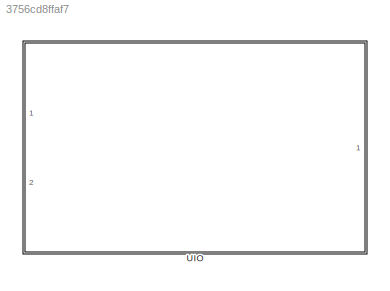
MODEL slx_3756cd8ffaf7
KIND model
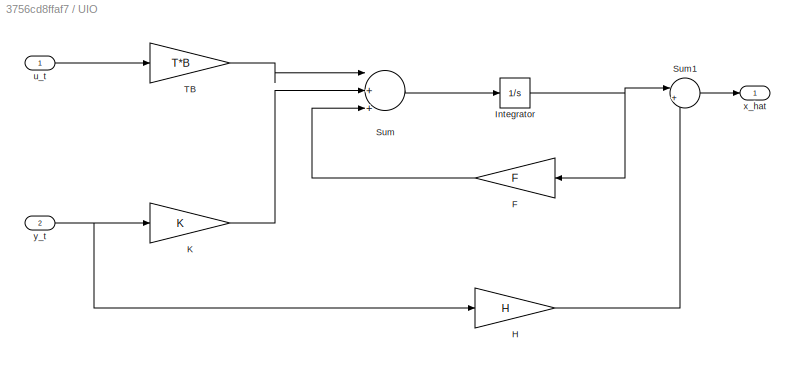
BLOCK [SubSystem] UIO
  Ports = [2, 1]
  RequestExecContextInheritance = off
BLOCK [Gain] UIO/F
  Gain = F
  OutDataTypeStr = Inherit: Inherit via internal rule
  ParamDataTypeStr = Inherit: Inherit via internal rule
  SaturateOnIntegerOverflow = off
BLOCK [Gain] UIO/H
  Gain = H
  OutDataTypeStr = Inherit: Inherit via internal rule
  ParamDataTypeStr = Inherit: Inherit via internal rule
  SaturateOnIntegerOverflow = off
BLOCK [Integrator] UIO/Integrator
  Ports = [1, 1]
BLOCK [Gain] UIO/K
  Gain = K
  OutDataTypeStr = Inherit: Inherit via internal rule
  ParamDataTypeStr = Inherit: Inherit via internal rule
  SaturateOnIntegerOverflow = off
BLOCK [Sum] UIO/Sum
  InputSameDT = off
  Inputs = |+++
  OutDataTypeStr = Inherit: Inherit via internal rule
  Ports = [3, 1]
  SaturateOnIntegerOverflow = off
BLOCK [Sum] UIO/Sum1
  IconShape = round
  InputSameDT = off
  Inputs = |++
  OutDataTypeStr = Inherit: Inherit via internal rule
  Ports = [2, 1]
  SaturateOnIntegerOverflow = off
BLOCK [Gain] UIO/TB
  Gain = T*B
  OutDataTypeStr = Inherit: Inherit via internal rule
  ParamDataTypeStr = Inherit: Inherit via internal rule
  SaturateOnIntegerOverflow = off
BLOCK [Inport] UIO/u_t
  IconDisplay = Port number
BLOCK [Outport] UIO/x_hat
  IconDisplay = Port number
BLOCK [Inport] UIO/y_t
  IconDisplay = Port number
  Port = 2
LINE UIO/F:1 -> UIO/Sum:3
LINE UIO/H:1 -> UIO/Sum1:2
NET UIO/Integrator:1 -> UIO/F:1, UIO/Sum1:1
LINE UIO/K:1 -> UIO/Sum:2
LINE UIO/Sum1:1 -> UIO/x_hat:1
LINE UIO/Sum:1 -> UIO/Integrator:1
LINE UIO/TB:1 -> UIO/Sum:1
LINE UIO/u_t:1 -> UIO/TB:1
NET UIO/y_t:1 -> UIO/H:1, UIO/K:1
note: NET lines group one-source signal fan-out (src -> all destinations, sorted); 1:1 wires keep LINE
